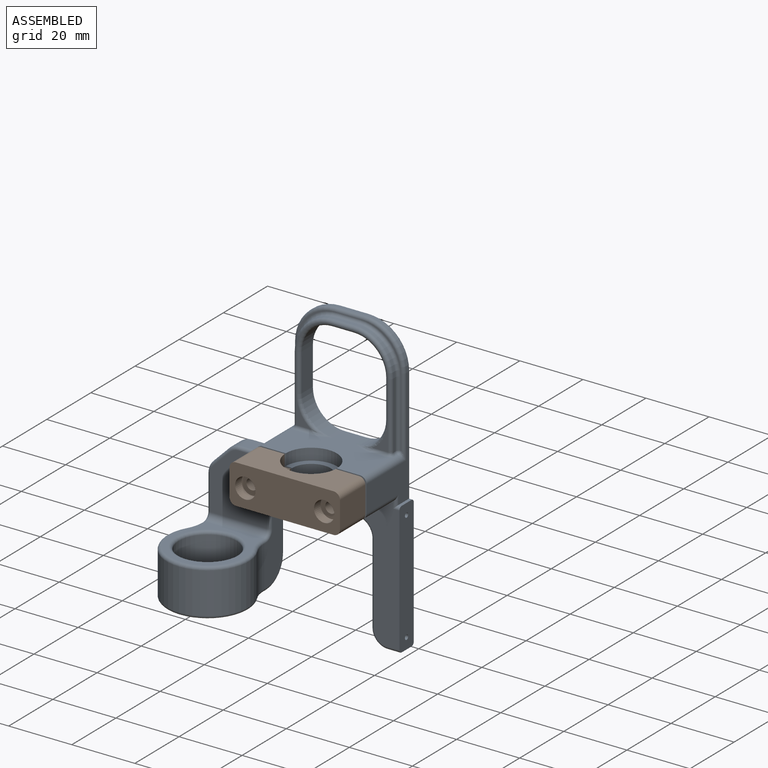
[diagram: assembled view]
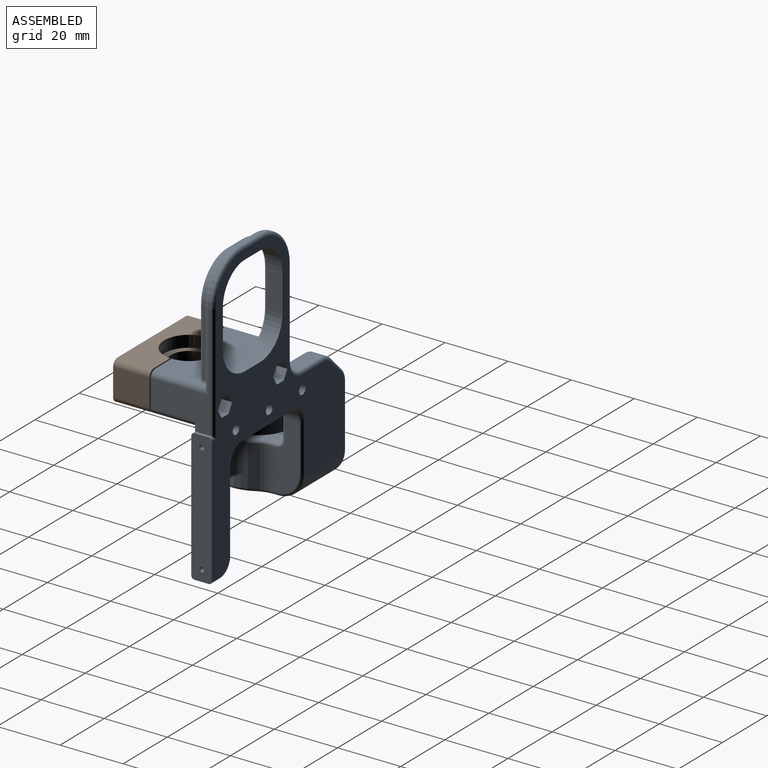
[diagram: assembled view, second angle]
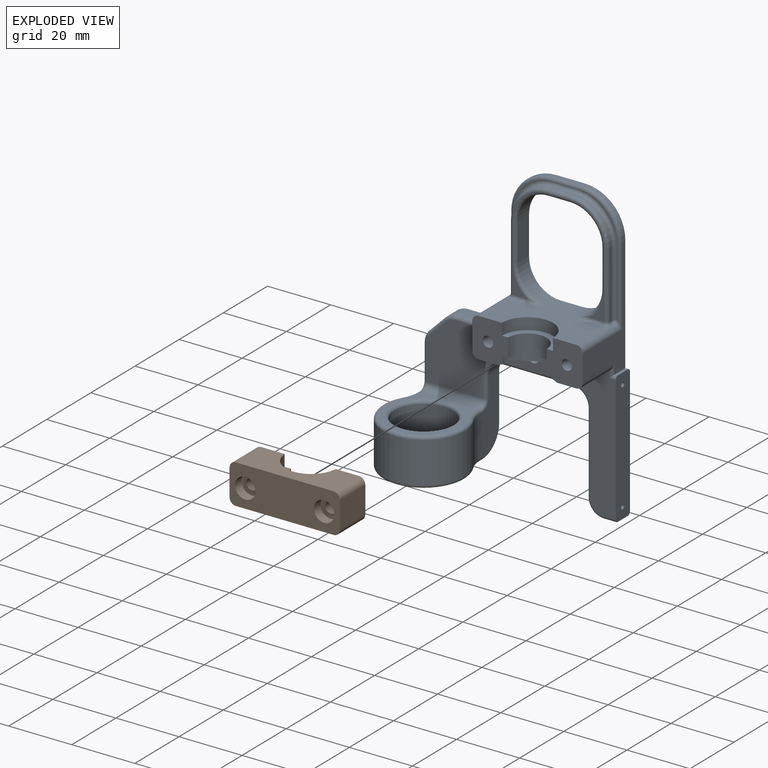
[diagram: exploded view]
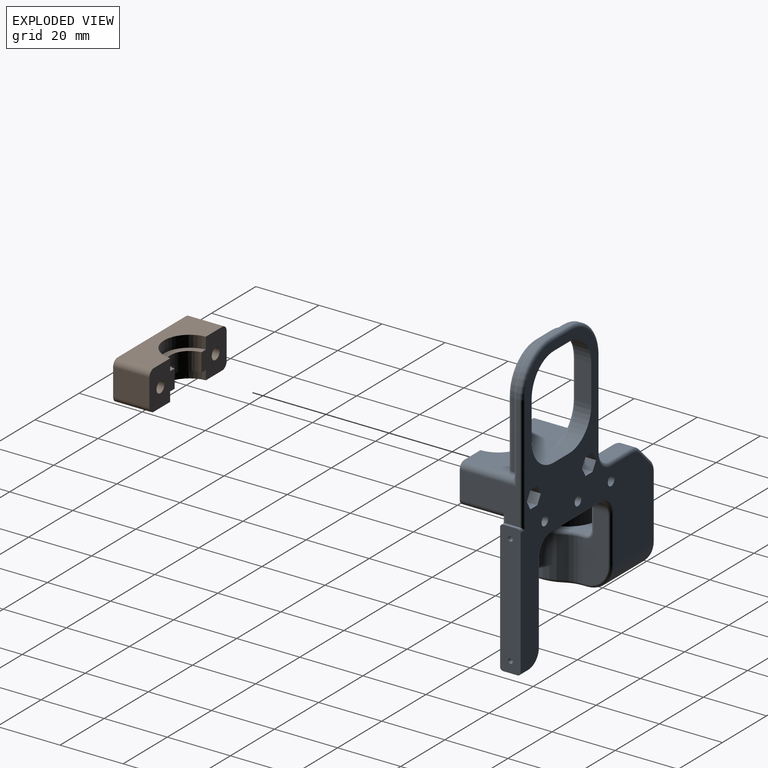
[diagram: exploded view, second angle]
ASSEMBLY  parts=2 mates=2
PART A: 170 faces, bbox 65.1x35.2x93 mm
  f0: plane 13x13mm, normal (0,-1,0), area 5.4mm2, adj f94,f95,f97,f98
  f1: plane 9x4.68mm, normal (0,-1,0), area 12.6mm2, adj f88,f89,f101
  f2: plane 33.5x19mm, normal (-1,0,0), area 150.2mm2, adj f6,f15,f46,f54,f78,f90,f114,f148
  f3: plane 31x20mm, normal (0,0,1), area 358.7mm2, adj f5,f6,f10,f15,f16,f17,f62,f63
  f4: plane 13x13mm, normal (0,-1,0), area 5.4mm2, adj f90,f92,f93,f94
  f5: cylinder r=2mm len=18mm, axis (0,1,0), area 50.6mm2, adj f3,f9,f16,f103,f104,f106
  f6: cylinder r=2mm len=18mm, axis (0,-1,0), area 50.6mm2, adj f2,f3,f15,f110,f111,f113
  f7: cylinder r=1.65mm len=12.6mm, axis (0,-1,0), area 130.6mm2, adj f15,f39
  f8: cylinder r=1.65mm len=12.6mm, axis (0,-1,0), area 130.6mm2, adj f16,f38
  f9: plane 36.5x19mm, normal (1,0,0), area 200mm2, adj f5,f16,f47,f55,f64,f97,f117,f144
  f10: plane 89.5x60mm, normal (0,1,0), area 1728.6mm2, adj f3,f11,f12,f32,f33,f34,f35,f36
  f11: cylinder r=1.5mm len=6.5mm, axis (0,1,0), area 61.3mm2, adj f10,f23
  f12: cylinder r=1.5mm len=6.5mm, axis (0,1,0), area 61.3mm2, adj f10,f23
  f13: cylinder r=8.1mm len=16.2mm, axis (0,0,-1), area 69.9mm2, adj f15,f16,f20,f21,f22,f25
  f14: plane 22x4.5mm, normal (0,0,-1), area 99mm2, adj f29,f120,f137,f164
  f15: plane 12.5x11.4mm, normal (0,-1,0), area 118.4mm2, adj f2,f3,f6,f7,f13,f17,f18,f19
  f16: plane 12.5x11.4mm, normal (0,-1,0), area 118.4mm2, adj f3,f5,f8,f9,f13,f17,f18,f19
  f17: cylinder r=8.1mm len=16.2mm, axis (0,0,-1), area 94.2mm2, adj f3,f15,f16,f18
  f18: plane 16.2x8.1mm, normal (0,0,1), area 44.6mm2, adj f15,f16,f17,f19
  f19: cylinder r=6.1mm len=12.2mm, axis (0,0,-1), area 111.1mm2, adj f15,f16,f18,f20
  f20: plane 16.2x8.1mm, normal (0,0,-1), area 44.6mm2, adj f13,f15,f16,f19
  f21: cylinder r=3.25mm len=13.5mm, axis (0,-1,0), area 43.5mm2, adj f13,f15,f23,f24,f25,f116
  f22: cylinder r=3.25mm len=13.5mm, axis (0,-1,0), area 43.1mm2, adj f13,f16,f23,f25,f26
  f23: plane 60x45.12mm, normal (0,-1,0), area 878.9mm2, adj f11,f12,f21,f22,f25,f26,f47,f65
  f24: plane 12.5x6.13mm, normal (0,0,-1), area 76.7mm2, adj f15,f21,f46,f116
  f25: plane 11.27x7.68mm, normal (0,0,-1), area 68.8mm2, adj f13,f21,f22,f23
  f26: plane 13.5x6.13mm, normal (0,0,-1), area 82.8mm2, adj f16,f22,f23,f47
  f27: plane 25.59x4.5mm, normal (-1,0,0), area 115.2mm2, adj f29,f30,f139,f166
  f28: plane 4.5x4mm, normal (0,0,-1), area 18mm2, adj f30,f65,f141,f168
  f29: cylinder r=5mm len=5mm, axis (0,-1,0), area 35.3mm2, adj f14,f27,f138,f165
  f30: cylinder r=5mm len=5mm, axis (0,1,0), area 33.5mm2, adj f27,f28,f31,f140,f167
  f31: cylinder r=0.75mm len=8.94mm, axis (1,0,0), area 41.2mm2, adj f30,f65
  f32: plane 7.4x2.75mm, normal (0.87,0,0.5), area 23.5mm2, adj f10,f33,f37,f38
  f33: plane 7.4x2.75mm, normal (0.87,0,-0.5), area 23.5mm2, adj f10,f32,f34,f38
  f34: plane 7.4x3.18mm, normal (0,0,-1), area 23.5mm2, adj f10,f33,f35,f38
  f35: plane 7.4x2.75mm, normal (-0.87,0,-0.5), area 23.5mm2, adj f10,f34,f36,f38
  f36: plane 7.4x2.75mm, normal (-0.87,0,0.5), area 23.5mm2, adj f10,f35,f37,f38
  f37: plane 7.4x3.18mm, normal (0,0,1), area 23.5mm2, adj f10,f32,f36,f38
  f38: plane 6.35x5.5mm, normal (0,1,0), area 17.6mm2, adj f8,f32,f33,f34,f35,f36,f37
  f39: plane 6.35x5.5mm, normal (0,1,0), area 17.6mm2, adj f7,f40,f41,f42,f43,f44,f45
  f40: plane 7.4x2.75mm, normal (0.87,0,0.5), area 23.5mm2, adj f10,f39,f41,f45
  f41: plane 7.4x2.75mm, normal (0.87,0,-0.5), area 23.5mm2, adj f10,f39,f40,f42
  f42: plane 7.4x3.18mm, normal (0,0,-1), area 23.5mm2, adj f10,f39,f41,f43
  f43: plane 7.4x2.75mm, normal (-0.87,0,-0.5), area 23.5mm2, adj f10,f39,f42,f44
  f44: plane 7.4x2.75mm, normal (-0.87,0,0.5), area 23.5mm2, adj f10,f39,f43,f45
  f45: plane 7.4x3.18mm, normal (0,0,1), area 23.5mm2, adj f10,f39,f40,f44
  f46: cylinder r=2mm len=12.5mm, axis (0,1,0), area 39.3mm2, adj f2,f15,f24,f115
  f47: cylinder r=2mm len=14.5mm, axis (0,-1,0), area 43.2mm2, adj f9,f16,f23,f26,f117
  f48: plane 9x1mm, normal (0,0,1), area 9mm2, adj f54,f55,f94,f146
  f49: plane 12x5mm, normal (-1,0,0), area 60mm2, adj f10,f52,f62,f88
  f50: plane 7x5mm, normal (0,0,-1), area 35mm2, adj f10,f52,f53,f86
  f51: plane 12x5mm, normal (1,0,0), area 60mm2, adj f10,f53,f63,f84
  f52: cylinder r=10mm len=10mm, axis (0,-1,0), area 78.5mm2, adj f10,f49,f50,f87
  f53: cylinder r=10mm len=10mm, axis (0,1,0), area 78.5mm2, adj f10,f50,f51,f85
  f54: cylinder r=13mm len=13mm, axis (0,1,0), area 20.4mm2, adj f2,f48,f92,f147
  f55: cylinder r=13mm len=13mm, axis (0,-1,0), area 20.4mm2, adj f9,f48,f95,f145
  f56: plane 21.17x1mm, normal (-1,0,0), area 21.2mm2, adj f60,f84,f91,f111
  f57: plane 21.17x1mm, normal (1,0,0), area 21.2mm2, adj f58,f88,f99,f104
  f58: cylinder r=12mm len=12mm, axis (0,1,0), area 18.8mm2, adj f57,f59,f87,f98
  f59: plane 7x1mm, normal (0,0,1), area 7mm2, adj f58,f60,f86,f96
  f60: cylinder r=12mm len=12mm, axis (0,1,0), area 18.8mm2, adj f56,f59,f85,f93
  f61: plane 9x4.68mm, normal (0,-1,0), area 12.6mm2, adj f83,f84,f108
  f62: cylinder r=10mm len=10mm, axis (0,1,0), area 78.5mm2, adj f3,f10,f49,f89
  f63: cylinder r=10mm len=10mm, axis (0,-1,0), area 78.5mm2, adj f3,f10,f51,f83
  f64: plane 4.5x1mm, normal (0,0,1), area 4.5mm2, adj f9,f65,f118,f119
  f65: plane 42x6.5mm, normal (1,0,0), area 268.6mm2, adj f10,f23,f28,f31,f64,f67,f118,f119
  f66: plane 1.5x1.5mm, normal (1,0,0), area 1.8mm2, adj f67
  f67: cylinder r=0.75mm len=9mm, axis (1,0,0), area 42.4mm2, adj f65,f66
  f68: plane 9.93x4.5mm, normal (0,0,1), area 44.7mm2, adj f78,f79,f123,f150
  f69: plane 22x8.14mm, normal (1,0,0), area 137.8mm2, adj f82,f120,f133,f134,f135,f160,f161,f162
  f70: plane 24.5x24mm, normal (0,0,-1), area 162.1mm2, adj f80,f142,f156,f157,f158,f159,f160
  f71: plane 26.93x8.14mm, normal (-1,0,0), area 159.9mm2, adj f77,f81,f127,f128,f129,f154,f155,f156
  f72: cylinder r=13mm len=26mm, axis (0,0,-1), area 705.5mm2, adj f81,f82,f131,f158
  f73: cylinder r=9.15mm len=18.3mm, axis (0,0,-1), area 747.4mm2, adj f142,f143
  f74: plane 24x24mm, normal (0,0,1), area 153.1mm2, adj f75,f129,f130,f131,f132,f133,f143
  f75: cylinder r=2mm len=18mm, axis (-1,0,0), area 56.5mm2, adj f23,f74,f128,f134
  f76: plane 5.07x5.07mm, normal (-0.71,0,0.71), area 32.3mm2, adj f77,f79,f125,f152
  f77: cylinder r=5mm len=4.5mm, axis (0,1,0), area 17.7mm2, adj f71,f76,f126,f153
  f78: cylinder r=5mm len=6.5mm, axis (0,1,0), area 38.6mm2, adj f2,f68,f121,f122,f149
  f79: cylinder r=5mm len=4.5mm, axis (0,-1,0), area 17.7mm2, adj f68,f76,f124,f151
  f80: cylinder r=8mm len=18mm, axis (1,0,0), area 226.2mm2, adj f10,f70,f155,f161
  f81: cylinder r=10mm len=13mm, axis (0,0,-1), area 67.1mm2, adj f71,f72,f130,f157
  f82: cylinder r=10mm len=13mm, axis (0,0,-1), area 67.1mm2, adj f69,f72,f132,f159
  f83: torus R=11mm, axis (0,-1,0), area 20mm2, adj f61,f63,f84,f107
  f84: cylinder r=1mm len=21.17mm, axis (0,0,1), area 51.9mm2, adj f51,f56,f61,f83,f85,f109,f110
  f85: torus R=11mm, axis (0,-1,0), area 54.3mm2, adj f53,f60,f84,f86
  f86: cylinder r=1mm len=7mm, axis (1,0,0), area 22mm2, adj f50,f59,f85,f87
  f87: torus R=11mm, axis (0,-1,0), area 54.3mm2, adj f52,f58,f86,f88
  f88: cylinder r=1mm len=21.17mm, axis (0,0,-1), area 51.9mm2, adj f1,f49,f57,f87,f89,f102,f103
  f89: torus R=11mm, axis (0,-1,0), area 20mm2, adj f1,f62,f88,f100
  f90: cylinder r=1mm len=25mm, axis (0,0,-1), area 36.7mm2, adj f2,f4,f91,f92,f113
  f91: cylinder r=1mm len=21.17mm, axis (0,0,1), area 33.3mm2, adj f56,f90,f93,f112
  f92: torus R=12mm, axis (0,1,0), area 31.2mm2, adj f4,f54,f90,f94
  f93: torus R=13mm, axis (0,1,0), area 30.5mm2, adj f4,f60,f91,f96
  f94: cylinder r=1mm len=9mm, axis (-1,0,0), area 14.1mm2, adj f0,f4,f48,f92,f95,f96
  f95: torus R=12mm, axis (0,1,0), area 31.2mm2, adj f0,f55,f94,f97
  f96: cylinder r=1mm len=7mm, axis (1,0,0), area 11mm2, adj f59,f93,f94,f98
  f97: cylinder r=1mm len=25mm, axis (0,0,-1), area 36.7mm2, adj f0,f9,f95,f99,f106
  f98: torus R=13mm, axis (0,1,0), area 30.5mm2, adj f0,f58,f96,f99
  f99: cylinder r=1mm len=21.17mm, axis (0,0,-1), area 33.3mm2, adj f57,f97,f98,f105
  f100: bspline ~6.59x2mm, area 5mm2, adj f3,f89,f101
  f101: cylinder r=1mm len=4.68mm, axis (-1,0,0), area 7.3mm2, adj f1,f3,f100,f102
  f102: torus R=2mm, axis (0,0,-1), area 1.1mm2, adj f3,f88,f101,f103
  f103: bspline ~2.23x1.34mm, area 1.8mm2, adj f5,f88,f102,f104
  f104: cylinder r=1mm len=1mm, axis (0,1,0), area 1.2mm2, adj f5,f57,f103,f105
  f105: sphere r=1mm, area 1.2mm2, adj f99,f104,f106
  f106: bspline ~2.94x2mm, area 2.4mm2, adj f5,f97,f105
  f107: bspline ~6.59x2mm, area 5mm2, adj f3,f83,f108
  f108: cylinder r=1mm len=4.68mm, axis (-1,0,0), area 7.3mm2, adj f3,f61,f107,f109
  f109: torus R=2mm, axis (0,0,-1), area 1.1mm2, adj f3,f84,f108,f110
  f110: bspline ~2.23x1.34mm, area 1.8mm2, adj f6,f84,f109,f111
  f111: cylinder r=1mm len=1mm, axis (0,-1,0), area 1.2mm2, adj f6,f56,f110,f112
  f112: sphere r=1mm, area 1.2mm2, adj f91,f111,f113
  f113: bspline ~2.83x2mm, area 2.4mm2, adj f6,f90,f112
  f114: cylinder r=1mm len=5.59mm, axis (0,0,-1), area 4.9mm2, adj f2,f23,f115,f121
  f115: torus R=3mm, axis (0,-1,0), area 5.8mm2, adj f23,f46,f114,f116
  f116: cylinder r=1mm len=6.13mm, axis (1,0,0), area 9mm2, adj f21,f23,f24,f115
  f117: cylinder r=1mm len=4mm, axis (0,0,-1), area 3.7mm2, adj f9,f23,f47,f118
  f118: cylinder r=1mm len=2mm, axis (-1,0,0), area 2.1mm2, adj f23,f64,f65,f117
  f119: cylinder r=1mm len=2mm, axis (1,0,0), area 2.1mm2, adj f10,f64,f65,f144
  f120: cylinder r=5mm len=5mm, axis (0,1,0), area 35.3mm2, adj f14,f69,f136,f163
  f121: bspline ~4.9x2.11mm, area 3.5mm2, adj f78,f114,f122
  f122: torus R=6mm, axis (0,-1,0), area 6.1mm2, adj f23,f78,f121,f123
  f123: cylinder r=1mm len=9.93mm, axis (1,0,0), area 15.6mm2, adj f23,f68,f122,f124
  f124: torus R=4mm, axis (0,-1,0), area 5.7mm2, adj f23,f79,f123,f125
  f125: cylinder r=1mm len=5.78mm, axis (0.71,0,0.71), area 11.3mm2, adj f23,f76,f124,f126
  f126: torus R=4mm, axis (0,-1,0), area 5.7mm2, adj f23,f77,f125,f127
  f127: cylinder r=1mm len=10.93mm, axis (0,0,1), area 17.2mm2, adj f23,f71,f126,f128
  f128: torus R=3mm, axis (1,0,0), area 5.8mm2, adj f71,f75,f127,f129
  f129: cylinder r=1mm len=1mm, axis (0,-1,0), area 1mm2, adj f71,f74,f128,f130
  f130: torus R=11mm, axis (0,0,-1), area 8.4mm2, adj f74,f81,f129,f131
  f131: torus R=12mm, axis (0,0,-1), area 82.9mm2, adj f72,f74,f130,f132
  f132: torus R=11mm, axis (0,0,-1), area 8.4mm2, adj f74,f82,f131,f133
  f133: cylinder r=1mm len=1mm, axis (0,1,0), area 1mm2, adj f69,f74,f132,f134
  f134: torus R=3mm, axis (-1,0,0), area 5.8mm2, adj f69,f75,f133,f135
  f135: cylinder r=1mm len=6mm, axis (0,0,-1), area 9.4mm2, adj f23,f69,f134,f136
  f136: torus R=6mm, axis (0,-1,0), area 13.2mm2, adj f23,f120,f135,f137
  f137: cylinder r=1mm len=22mm, axis (1,0,0), area 34.6mm2, adj f14,f23,f136,f138
  f138: torus R=6mm, axis (0,-1,0), area 13.2mm2, adj f23,f29,f137,f139
  f139: cylinder r=1mm len=25.59mm, axis (0,0,1), area 40.2mm2, adj f23,f27,f138,f140
  f140: torus R=4mm, axis (0,-1,0), area 11.4mm2, adj f23,f30,f139,f141
  f141: cylinder r=1mm len=4mm, axis (-1,0,0), area 6.3mm2, adj f23,f28,f65,f140
  f142: torus R=10.15mm, axis (0,0,-1), area 93.9mm2, adj f70,f73
  f143: torus R=10.15mm, axis (0,0,-1), area 93.9mm2, adj f73,f74
  f144: cylinder r=1mm len=37.5mm, axis (0,0,1), area 57.9mm2, adj f9,f10,f119,f145
  f145: torus R=12mm, axis (0,-1,0), area 31.2mm2, adj f10,f55,f144,f146
  f146: cylinder r=1mm len=9mm, axis (-1,0,0), area 14.1mm2, adj f10,f48,f145,f147
  f147: torus R=12mm, axis (0,-1,0), area 31.2mm2, adj f10,f54,f146,f148
  f148: cylinder r=1mm len=27.91mm, axis (0,0,-1), area 43.8mm2, adj f2,f10,f147,f149
  f149: torus R=6mm, axis (0,-1,0), area 13.2mm2, adj f10,f78,f148,f150
  f150: cylinder r=1mm len=9.93mm, axis (-1,0,0), area 15.6mm2, adj f10,f68,f149,f151
  f151: torus R=4mm, axis (0,-1,0), area 5.7mm2, adj f10,f79,f150,f152
  f152: cylinder r=1mm len=5.78mm, axis (0.71,0,0.71), area 11.3mm2, adj f10,f76,f151,f153
  f153: torus R=4mm, axis (0,-1,0), area 5.7mm2, adj f10,f77,f152,f154
  f154: cylinder r=1mm len=19.93mm, axis (0,0,-1), area 31.3mm2, adj f10,f71,f153,f155
  f155: torus R=7mm, axis (1,0,0), area 18.8mm2, adj f71,f80,f154,f156
  f156: cylinder r=1mm len=1.14mm, axis (0,-1,0), area 1.8mm2, adj f70,f71,f155,f157
  f157: torus R=11mm, axis (0,0,-1), area 8.4mm2, adj f70,f81,f156,f158
  f158: torus R=12mm, axis (0,0,-1), area 82.9mm2, adj f70,f72,f157,f159
  f159: torus R=11mm, axis (0,0,-1), area 8.4mm2, adj f70,f82,f158,f160
  f160: cylinder r=1mm len=1.14mm, axis (0,-1,0), area 1.8mm2, adj f69,f70,f159,f161
  f161: torus R=7mm, axis (-1,0,0), area 18.8mm2, adj f69,f80,f160,f162
  f162: cylinder r=1mm len=15mm, axis (0,0,1), area 23.6mm2, adj f10,f69,f161,f163
  f163: torus R=6mm, axis (0,-1,0), area 13.2mm2, adj f10,f120,f162,f164
  f164: cylinder r=1mm len=22mm, axis (1,0,0), area 34.6mm2, adj f10,f14,f163,f165
  f165: torus R=6mm, axis (0,-1,0), area 13.2mm2, adj f10,f29,f164,f166
  f166: cylinder r=1mm len=25.59mm, axis (0,0,-1), area 40.2mm2, adj f10,f27,f165,f167
  f167: torus R=4mm, axis (0,-1,0), area 11.4mm2, adj f10,f30,f166,f168
  f168: cylinder r=1mm len=4mm, axis (1,0,0), area 6.3mm2, adj f10,f28,f65,f167
  f169: cylinder r=1.5mm len=6.5mm, axis (0,-1,0), area 61.3mm2, adj f10,f23
PART B: 22 faces, bbox 35x11.5x12.5 mm
  f0: cylinder r=1.75mm len=8.5mm, axis (0,-1,0), area 93.5mm2, adj f8,f16
  f1: cylinder r=1.75mm len=8.5mm, axis (0,-1,0), area 93.5mm2, adj f5,f15
  f2: plane 35x12.5mm, normal (0,1,0), area 367.7mm2, adj f6,f7,f9,f13,f14,f17,f18,f19
  f3: plane 16.17x7.6mm, normal (0,0,-1), area 42.6mm2, adj f5,f8,f11,f12
  f4: cylinder r=8.1mm len=16.17mm, axis (0,0,1), area 90.5mm2, adj f5,f8,f9,f10
  f5: plane 12.5x11.42mm, normal (0,-1,0), area 118mm2, adj f1,f3,f4,f6,f9,f10,f11,f12
  f6: plane 11.5x8.5mm, normal (1,0,0), area 97.8mm2, adj f2,f5,f18,f21
  f7: plane 11.5x8.5mm, normal (-1,0,0), area 97.8mm2, adj f2,f8,f19,f20
  f8: plane 12.5x11.42mm, normal (0,-1,0), area 118mm2, adj f0,f3,f4,f7,f9,f10,f11,f12
  f9: plane 31x11.5mm, normal (0,0,1), area 261.5mm2, adj f2,f4,f5,f8,f20,f21
  f10: plane 16.17x7.6mm, normal (0,0,1), area 42.6mm2, adj f4,f5,f8,f11
  f11: cylinder r=6.1mm len=12.16mm, axis (0,0,1), area 105.3mm2, adj f3,f5,f8,f10
  f12: cylinder r=8.1mm len=16.17mm, axis (0,0,1), area 73.3mm2, adj f3,f5,f8,f13
  f13: plane 31x11.5mm, normal (0,0,-1), area 261.5mm2, adj f2,f5,f8,f12,f18,f19
  f14: cylinder r=3.25mm len=6.5mm, axis (0,1,0), area 61.3mm2, adj f2,f15
  f15: plane 6.5x6.5mm, normal (0,1,0), area 23.6mm2, adj f1,f14
  f16: plane 6.5x6.5mm, normal (0,1,0), area 23.6mm2, adj f0,f17
  f17: cylinder r=3.25mm len=6.5mm, axis (0,1,0), area 61.3mm2, adj f2,f16
  f18: cylinder r=2mm len=11.5mm, axis (0,1,0), area 36.1mm2, adj f2,f5,f6,f13
  f19: cylinder r=2mm len=11.5mm, axis (0,-1,0), area 36.1mm2, adj f2,f7,f8,f13
  f20: cylinder r=2mm len=11.5mm, axis (0,-1,0), area 36.1mm2, adj f2,f7,f8,f9
  f21: cylinder r=2mm len=11.5mm, axis (0,1,0), area 36.1mm2, adj f2,f5,f6,f9
PLACE A t=(-6.17,-2,-5.63)mm fixed
PLACE B rot(axis=(0,0,1),180deg) t=(1.33,-22,9.53)mm
MATE cylindrical A.f13 <-> B.f11  axis (0,0,-1) through (1.33,-22,2.93)mm
MATE slider B.f1 <-> A.f7  axis (0,1,0) through (-11.17,-31,2.93)mm
